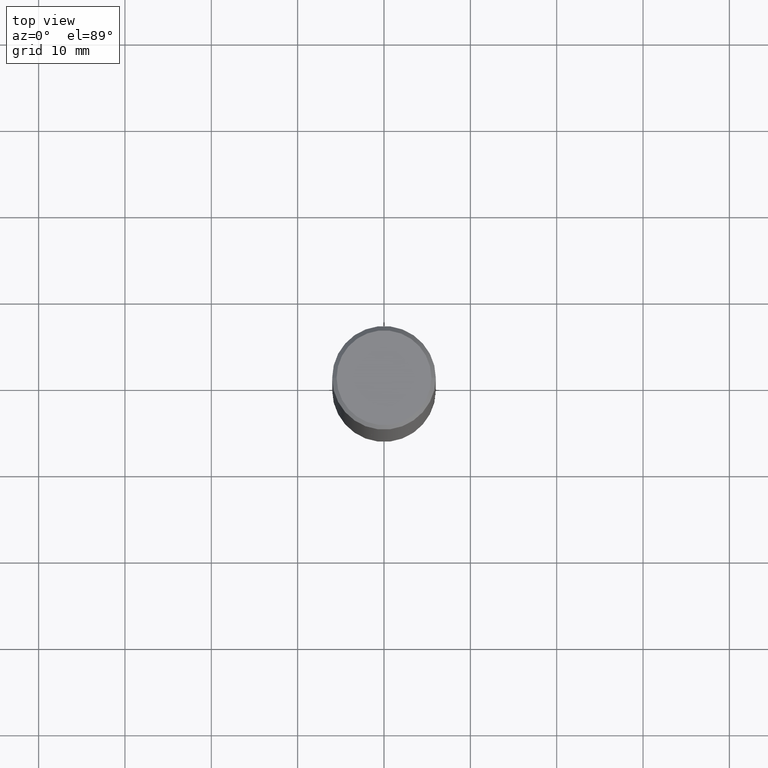
[diagram: clean part render]
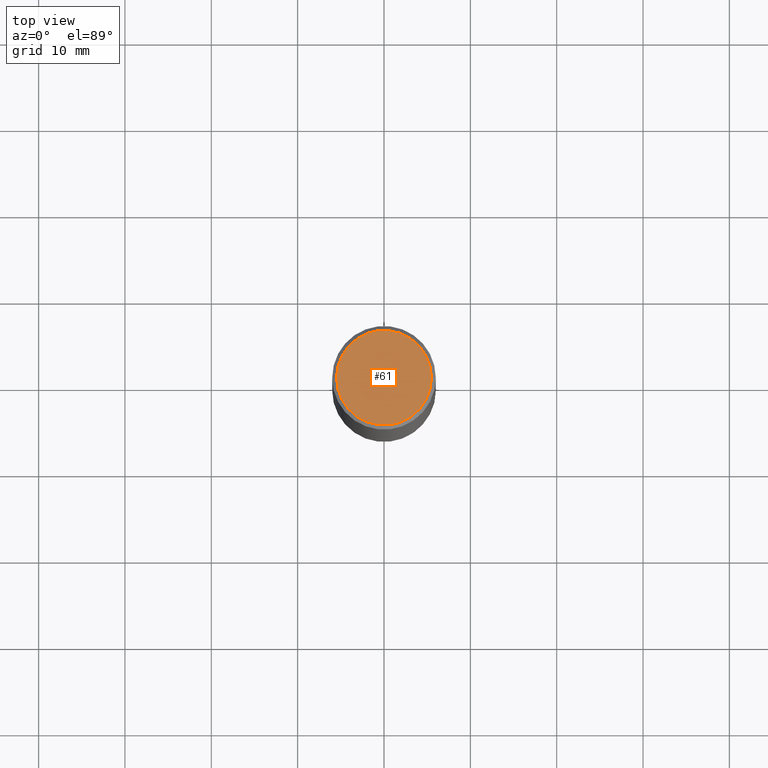
[diagram: same view with one face highlighted and labeled with its STEP entity id]
A machine part, top view. The second image highlights one B-rep face of the part: STEP entity #61.
In plain terms, the highlighted planar face has unit normal (0, -0, -1).
Its self-contained STEP definition (entity closure, byte-faithful):
#8 = AXIS2_PLACEMENT_3D ( 'NONE', #389, #161, #349 ) ;
#10 = CARTESIAN_POINT ( 'NONE',  ( 0.2161999999999996980, -1.586759460484350410E-15, 2.475737244258346579E-16 ) ) ;
#38 = DIRECTION ( 'NONE',  ( -1.000000000000000000, 6.982962677686265922E-15, -4.876176775795935793E-29 ) ) ;
#51 = ORIENTED_EDGE ( 'NONE', *, *, #97, .T. ) ;
#61 = ADVANCED_FACE ( 'NONE', ( #205 ), #336, .F. ) ;
#69 = AXIS2_PLACEMENT_3D ( 'NONE', #330, #70, #203 ) ;
#70 = DIRECTION ( 'NONE',  ( -2.445468806185136597E-29, 3.491481338843145583E-15, 1.000000000000000000 ) ) ;
#97 = EDGE_CURVE ( 'NONE', #141, #170, #281, .T. ) ;
#99 = CIRCLE ( 'NONE', #69, 0.2161999999999996980 ) ;
#141 = VERTEX_POINT ( 'NONE', #302 ) ;
#161 = DIRECTION ( 'NONE',  ( -2.445468806185136597E-29, 3.491481338843145583E-15, 1.000000000000000000 ) ) ;
#170 = VERTEX_POINT ( 'NONE', #10 ) ;
#178 = CARTESIAN_POINT ( 'NONE',  ( 1.509716530915768548E-15, 0.2161999999999996980, -6.310714032449751543E-16 ) ) ;
#203 = DIRECTION ( 'NONE',  ( 1.000000000000000000, -6.982962677686266711E-15, 4.881916136609868741E-29 ) ) ;
#205 = FACE_OUTER_BOUND ( 'NONE', #265, .T. ) ;
#244 = ORIENTED_EDGE ( 'NONE', *, *, #295, .T. ) ;
#265 = EDGE_LOOP ( 'NONE', ( #51, #244 ) ) ;
#281 = CIRCLE ( 'NONE', #8, 0.2161999999999996980 ) ;
#295 = EDGE_CURVE ( 'NONE', #170, #141, #99, .T. ) ;
#302 = CARTESIAN_POINT ( 'NONE',  ( -0.2161999999999996980, 1.544631344304201183E-15, 2.475737244258131614E-16 ) ) ;
#308 = DIRECTION ( 'NONE',  ( 2.438088387897960049E-29, -3.491481338843145188E-15, -1.000000000000000000 ) ) ;
#330 = CARTESIAN_POINT ( 'NONE',  ( -6.054338203144274603E-45, 8.643990388206593487E-31, 2.475737244258238603E-16 ) ) ;
#336 = PLANE ( 'NONE',  #338 ) ;
#338 = AXIS2_PLACEMENT_3D ( 'NONE', #178, #308, #38 ) ;
#349 = DIRECTION ( 'NONE',  ( 1.000000000000000000, -6.982962677686266711E-15, 4.881916136609868741E-29 ) ) ;
#389 = CARTESIAN_POINT ( 'NONE',  ( -6.054338203144274603E-45, 8.643990388206593487E-31, 2.475737244258238603E-16 ) ) ;